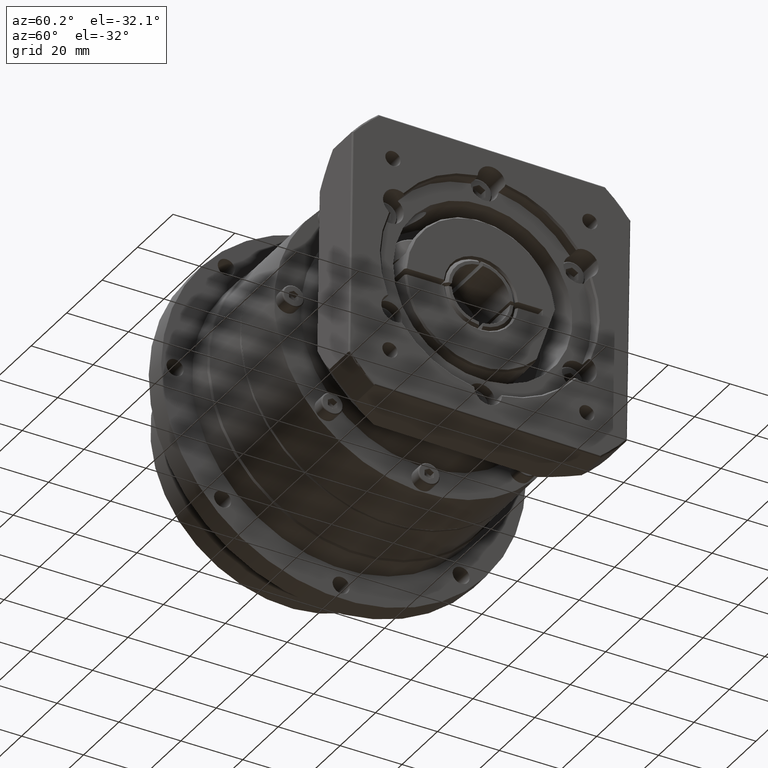
[diagram: clean part render]
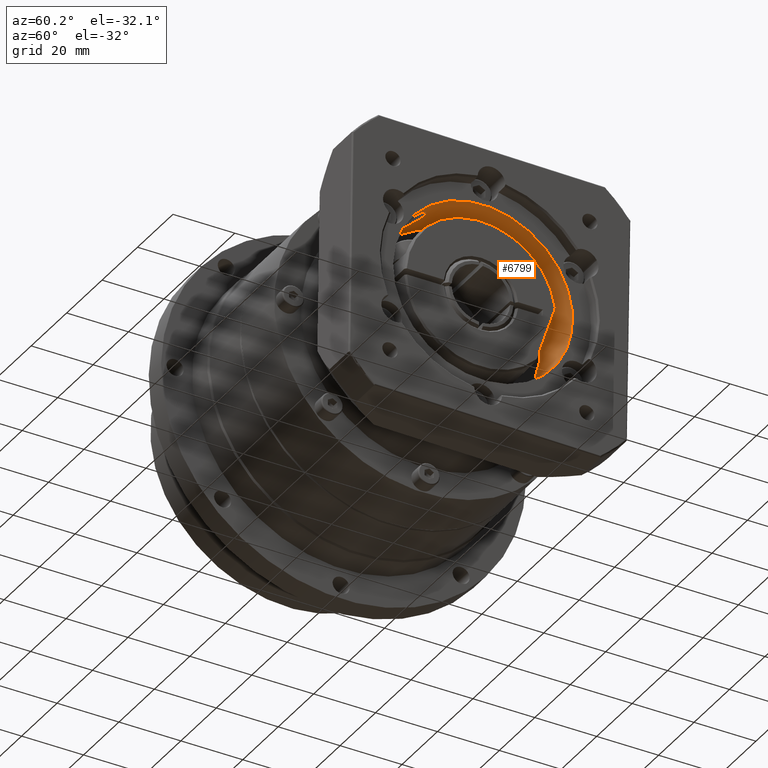
[diagram: same view with one face highlighted and labeled with its STEP entity id]
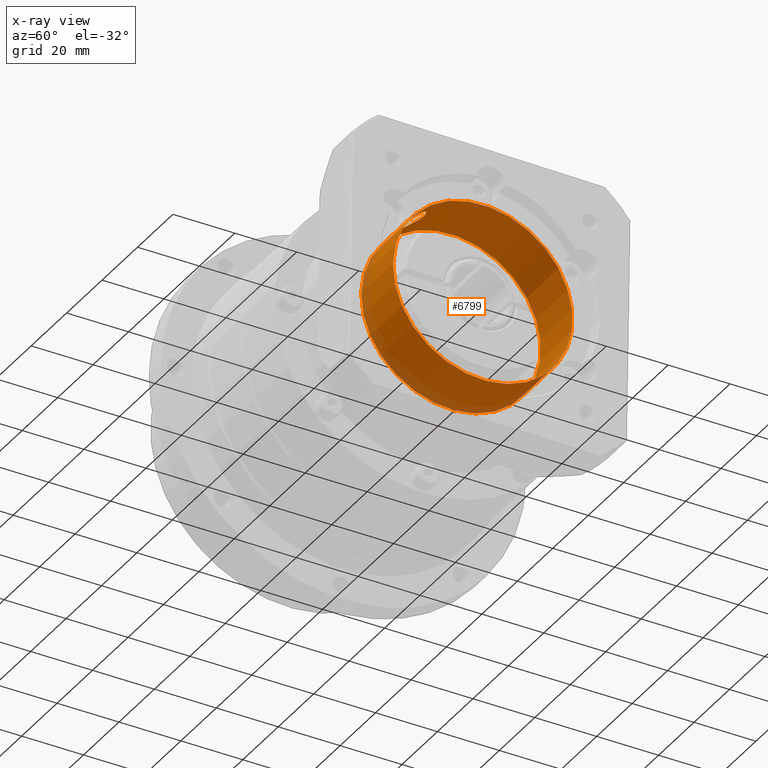
[diagram: x-ray of the same camera — body ghosted, the highlighted face saturated]
A machine part, auxiliary view. The second image highlights one B-rep face of the part: STEP entity #6799.
The next image is the same camera in x-ray: the body ghosted, the highlighted face saturated — about 12% of this face is hidden behind the body in this view.
In plain terms, the highlighted cylindrical surface (bore or boss wall) has radius 29 mm, axis along (-1, 0, 0).
Its self-contained STEP definition (entity closure, byte-faithful):
#79=B_SPLINE_CURVE_WITH_KNOTS('',3,(#11533,#11534,#11535,#11536,#11537,
#11538,#11539,#11540,#11541,#11542,#11543,#11544,#11545,#11546,#11547,#11548,
#11549,#11550,#11551,#11552,#11553,#11554,#11555,#11556,#11557,#11558,#11559,
#11560,#11561,#11562,#11563,#11564,#11565,#11566,#11567,#11568,#11569,#11570),
 .UNSPECIFIED.,.T.,.F.,(4,2,2,2,2,2,2,2,2,2,2,2,2,2,2,2,2,2,4),(0.,0.0816463751742779,
0.163292750348556,0.326585500697112,0.560253973766129,0.793922446835146,
0.99716105333715,1.20039965983915,1.35762905963704,1.51485845943492,1.68151005279486,
1.84816164615479,2.0419909140311,2.2358201819074,2.46948865497642,2.70315712804543,
2.86644987839399,2.94809625356827,3.02974262874255),.UNSPECIFIED.);
#1233=FACE_BOUND('',#2264,.T.);
#1234=FACE_BOUND('',#2265,.T.);
#1661=FACE_OUTER_BOUND('',#2263,.T.);
#2263=EDGE_LOOP('',(#5477));
#2264=EDGE_LOOP('',(#5478));
#2265=EDGE_LOOP('',(#5479));
#2813=CIRCLE('',#7465,29.);
#2840=CIRCLE('',#7511,29.);
#3344=VERTEX_POINT('',#11367);
#3377=VERTEX_POINT('',#11506);
#3383=VERTEX_POINT('',#11532);
#4089=EDGE_CURVE('',#3344,#3344,#2813,.T.);
#4140=EDGE_CURVE('',#3377,#3377,#2840,.T.);
#4146=EDGE_CURVE('',#3383,#3383,#79,.T.);
#5477=ORIENTED_EDGE('',*,*,#4089,.F.);
#5478=ORIENTED_EDGE('',*,*,#4146,.T.);
#5479=ORIENTED_EDGE('',*,*,#4140,.F.);
#6101=CYLINDRICAL_SURFACE('',#7533,29.);
#6799=ADVANCED_FACE('',(#1661,#1233,#1234),#6101,.F.);
#7465=AXIS2_PLACEMENT_3D('',#11368,#8938,#8939);
#7511=AXIS2_PLACEMENT_3D('',#11507,#9042,#9043);
#7533=AXIS2_PLACEMENT_3D('',#11574,#9086,#9087);
#8938=DIRECTION('center_axis',(1.,-3.94956931320372E-15,-3.45385805763014E-15));
#8939=DIRECTION('ref_axis',(-4.18834293327712E-15,-0.999882750094677,0.0153129377686107));
#9042=DIRECTION('center_axis',(-1.,4.15140437703656E-15,3.4507670074328E-15));
#9043=DIRECTION('ref_axis',(-3.51393260220579E-15,-0.0153129377686107,-0.999882750094677));
#9086=DIRECTION('center_axis',(-1.,4.15140437703656E-15,3.4507670074328E-15));
#9087=DIRECTION('ref_axis',(-4.18834293327712E-15,-0.999882750094677,0.0153129377686107));
#11367=CARTESIAN_POINT('',(63.7802383984014,-124.068648310505,-10.9895106845887));
#11368=CARTESIAN_POINT('Origin',(63.7802383984015,-95.0720485577598,-11.4335858798784));
#11506=CARTESIAN_POINT('',(81.7802383984014,-124.068648310506,-10.9895106845888));
#11507=CARTESIAN_POINT('Origin',(81.7802383984015,-95.0720485577599,-11.4335858798785));
#11532=CARTESIAN_POINT('',(73.7802383984015,-118.053901310318,6.25354062670013));
#11533=CARTESIAN_POINT('Ctrl Pts',(73.7802383984014,-118.053901310318,6.25354062670014));
#11534=CARTESIAN_POINT('Ctrl Pts',(74.0523929823157,-118.053901310318,6.25354062670014));
#11535=CARTESIAN_POINT('Ctrl Pts',(74.3242112571198,-118.026893281023,6.28877982861282));
#11536=CARTESIAN_POINT('Ctrl Pts',(74.849835530787,-117.923208863382,6.42227072941509));
#11537=CARTESIAN_POINT('Ctrl Pts',(75.1036947458002,-117.846588509834,6.52035634842037));
#11538=CARTESIAN_POINT('Ctrl Pts',(75.8183429601036,-117.558671100396,6.88161692875363));
#11539=CARTESIAN_POINT('Ctrl Pts',(76.2324680953394,-117.286755216216,7.21306068481207));
#11540=CARTESIAN_POINT('Ctrl Pts',(77.022638843217,-116.592226436662,8.01563715827774));
#11541=CARTESIAN_POINT('Ctrl Pts',(77.3982017312618,-116.080342789954,8.5735758256244));
#11542=CARTESIAN_POINT('Ctrl Pts',(77.903085594639,-114.94999725358,9.69701048711693));
#11543=CARTESIAN_POINT('Ctrl Pts',(78.0302383984015,-114.330515561318,10.2624535272123));
#11544=CARTESIAN_POINT('Ctrl Pts',(78.0302383984015,-113.215785851679,11.1996585141552));
#11545=CARTESIAN_POINT('Ctrl Pts',(77.9325279074721,-112.637478343721,11.6515599394404));
#11546=CARTESIAN_POINT('Ctrl Pts',(77.4770069540188,-111.529059609308,12.4543831587532));
#11547=CARTESIAN_POINT('Ctrl Pts',(77.1180008279795,-110.999908979208,12.8059519202159));
#11548=CARTESIAN_POINT('Ctrl Pts',(76.3110049657249,-110.247578955953,13.2818759671794));
#11549=CARTESIAN_POINT('Ctrl Pts',(75.8607899734769,-109.947475510966,13.461731580751));
#11550=CARTESIAN_POINT('Ctrl Pts',(74.8574904494683,-109.542323647624,13.6993863724076));
#11551=CARTESIAN_POINT('Ctrl Pts',(74.3043363977278,-109.437974506202,13.7580828152256));
#11552=CARTESIAN_POINT('Ctrl Pts',(73.2247330872017,-109.437974506202,13.7580828152257));
#11553=CARTESIAN_POINT('Ctrl Pts',(72.6415972724781,-109.555052221478,13.692306026404));
#11554=CARTESIAN_POINT('Ctrl Pts',(71.5946741652775,-110.004015816506,13.4281155308877));
#11555=CARTESIAN_POINT('Ctrl Pts',(71.1308647964469,-110.335154796081,13.228521876037));
#11556=CARTESIAN_POINT('Ctrl Pts',(70.3611752850284,-111.112547212104,12.7314418557111));
#11557=CARTESIAN_POINT('Ctrl Pts',(70.033905302929,-111.624217547468,12.3878161601962));
#11558=CARTESIAN_POINT('Ctrl Pts',(69.6190809092842,-112.688266566996,11.6120722597765));
#11559=CARTESIAN_POINT('Ctrl Pts',(69.5302383984015,-113.239792945646,11.1794746364014));
#11560=CARTESIAN_POINT('Ctrl Pts',(69.5302383984015,-114.330515561318,10.2624535272123));
#11561=CARTESIAN_POINT('Ctrl Pts',(69.657391202164,-114.94999725358,9.69701048711695));
#11562=CARTESIAN_POINT('Ctrl Pts',(70.1622750655412,-116.080342789954,8.57357582562442));
#11563=CARTESIAN_POINT('Ctrl Pts',(70.5378379535859,-116.592226436662,8.01563715827776));
#11564=CARTESIAN_POINT('Ctrl Pts',(71.3280087014636,-117.286755216216,7.21306068481209));
#11565=CARTESIAN_POINT('Ctrl Pts',(71.7421338366993,-117.558671100396,6.88161692875364));
#11566=CARTESIAN_POINT('Ctrl Pts',(72.4567820510027,-117.846588509834,6.52035634842037));
#11567=CARTESIAN_POINT('Ctrl Pts',(72.7106412660159,-117.923208863382,6.42227072941509));
#11568=CARTESIAN_POINT('Ctrl Pts',(73.2362655396831,-118.026893281023,6.28877982861281));
#11569=CARTESIAN_POINT('Ctrl Pts',(73.5080838144872,-118.053901310318,6.25354062670015));
#11570=CARTESIAN_POINT('Ctrl Pts',(73.7802383984015,-118.053901310318,6.25354062670015));
#11574=CARTESIAN_POINT('Origin',(72.7802383984015,-95.0720485577598,-11.4335858798785));